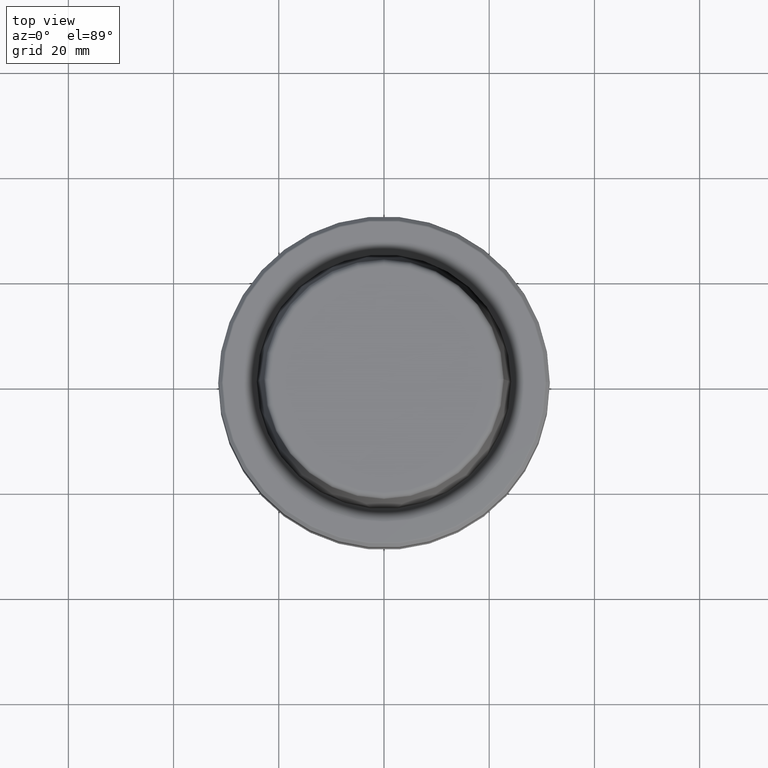
[diagram: clean part render]
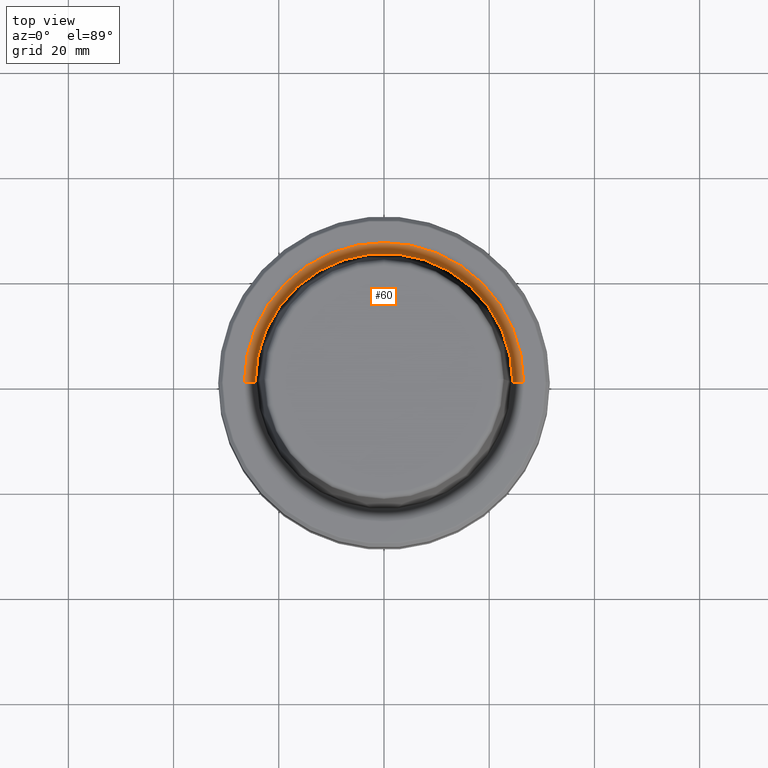
[diagram: same view with one face highlighted and labeled with its STEP entity id]
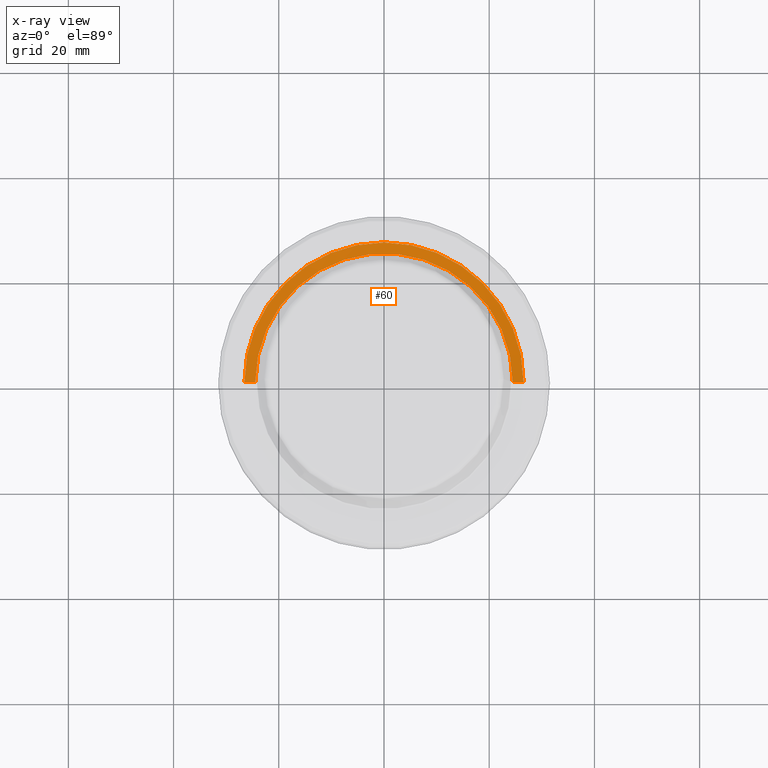
[diagram: x-ray of the same camera — body ghosted, the highlighted face saturated]
A machine part, top view. The second image highlights one B-rep face of the part: STEP entity #60.
The next image is the same camera in x-ray: the body ghosted, the highlighted face saturated — about 0% of this face is hidden behind the body in this view.
In plain terms, the highlighted conical surface has half-angle 80 deg.
Its self-contained STEP definition (entity closure, byte-faithful):
#15 = CONICAL_SURFACE ( 'NONE', #556, 26.52499999999999900, 1.396263401595460500 ) ;
#19 = ORIENTED_EDGE ( 'NONE', *, *, #985, .F. ) ;
#38 = CARTESIAN_POINT ( 'NONE',  ( 24.47682408883346700, 0.0000000000000000000, -0.3611486743758107700 ) ) ;
#60 = ADVANCED_FACE ( 'NONE', ( #566 ), #15, .F. ) ;
#69 = CIRCLE ( 'NONE', #496, 24.47682408883346700 ) ;
#74 = ORIENTED_EDGE ( 'NONE', *, *, #995, .T. ) ;
#98 = CARTESIAN_POINT ( 'NONE',  ( -26.52499999999999900, 3.248375634738354300E-015, 0.0000000000000000000 ) ) ;
#117 = DIRECTION ( 'NONE',  ( 1.000000000000000000, 0.0000000000000000000, 0.0000000000000000000 ) ) ;
#148 = ORIENTED_EDGE ( 'NONE', *, *, #936, .F. ) ;
#186 = CARTESIAN_POINT ( 'NONE',  ( 0.0000000000000000000, 0.0000000000000000000, -0.3611486743758107700 ) ) ;
#196 = LINE ( 'NONE', #98, #1230 ) ;
#250 = ORIENTED_EDGE ( 'NONE', *, *, #1083, .T. ) ;
#255 = CARTESIAN_POINT ( 'NONE',  ( -24.47682408883346700, 3.122961031053313900E-015, -0.3611486743758107700 ) ) ;
#288 = DIRECTION ( 'NONE',  ( 1.000000000000000000, 0.0000000000000000000, 0.0000000000000000000 ) ) ;
#300 = LINE ( 'NONE', #914, #525 ) ;
#397 = CARTESIAN_POINT ( 'NONE',  ( 0.0000000000000000000, 0.0000000000000000000, 0.0000000000000000000 ) ) ;
#428 = DIRECTION ( 'NONE',  ( 0.9848077530122074700, 0.0000000000000000000, 0.1736481776669334700 ) ) ;
#496 = AXIS2_PLACEMENT_3D ( 'NONE', #186, #859, #288 ) ;
#515 = EDGE_LOOP ( 'NONE', ( #148, #19, #250, #74 ) ) ;
#525 = VECTOR ( 'NONE', #428, 1000.000000000000200 ) ;
#533 = VERTEX_POINT ( 'NONE', #255 ) ;
#556 = AXIS2_PLACEMENT_3D ( 'NONE', #823, #925, #1021 ) ;
#566 = FACE_OUTER_BOUND ( 'NONE', #515, .T. ) ;
#572 = AXIS2_PLACEMENT_3D ( 'NONE', #397, #978, #117 ) ;
#616 = CARTESIAN_POINT ( 'NONE',  ( 26.52499999999999900, 0.0000000000000000000, 0.0000000000000000000 ) ) ;
#636 = VERTEX_POINT ( 'NONE', #38 ) ;
#743 = VERTEX_POINT ( 'NONE', #805 ) ;
#779 = DIRECTION ( 'NONE',  ( -0.9848077530122074700, 1.206041662501897100E-016, 0.1736481776669334700 ) ) ;
#783 = VERTEX_POINT ( 'NONE', #616 ) ;
#805 = CARTESIAN_POINT ( 'NONE',  ( -26.52499999999999900, 3.248375634738354300E-015, 0.0000000000000000000 ) ) ;
#823 = CARTESIAN_POINT ( 'NONE',  ( 0.0000000000000000000, 0.0000000000000000000, 0.0000000000000000000 ) ) ;
#859 = DIRECTION ( 'NONE',  ( -0.0000000000000000000, -0.0000000000000000000, 1.000000000000000000 ) ) ;
#914 = CARTESIAN_POINT ( 'NONE',  ( 26.52499999999999900, 0.0000000000000000000, 0.0000000000000000000 ) ) ;
#925 = DIRECTION ( 'NONE',  ( -0.0000000000000000000, -0.0000000000000000000, 1.000000000000000000 ) ) ;
#936 = EDGE_CURVE ( 'NONE', #533, #743, #196, .T. ) ;
#978 = DIRECTION ( 'NONE',  ( -0.0000000000000000000, -0.0000000000000000000, 1.000000000000000000 ) ) ;
#985 = EDGE_CURVE ( 'NONE', #636, #533, #69, .T. ) ;
#995 = EDGE_CURVE ( 'NONE', #783, #743, #1106, .T. ) ;
#1021 = DIRECTION ( 'NONE',  ( 1.000000000000000000, 0.0000000000000000000, 0.0000000000000000000 ) ) ;
#1083 = EDGE_CURVE ( 'NONE', #636, #783, #300, .T. ) ;
#1106 = CIRCLE ( 'NONE', #572, 26.52499999999999900 ) ;
#1230 = VECTOR ( 'NONE', #779, 1000.000000000000200 ) ;